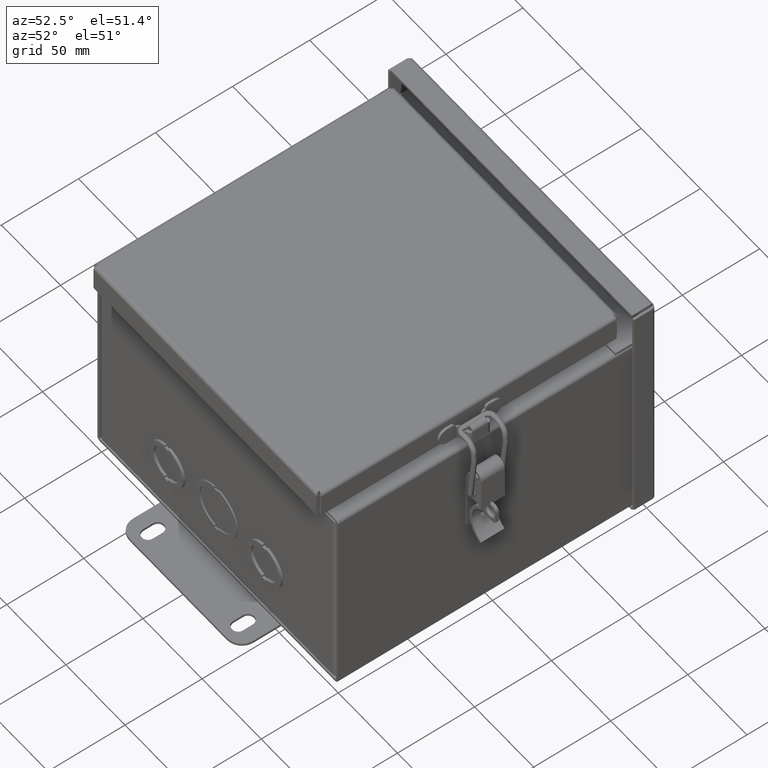
[diagram: clean part render]
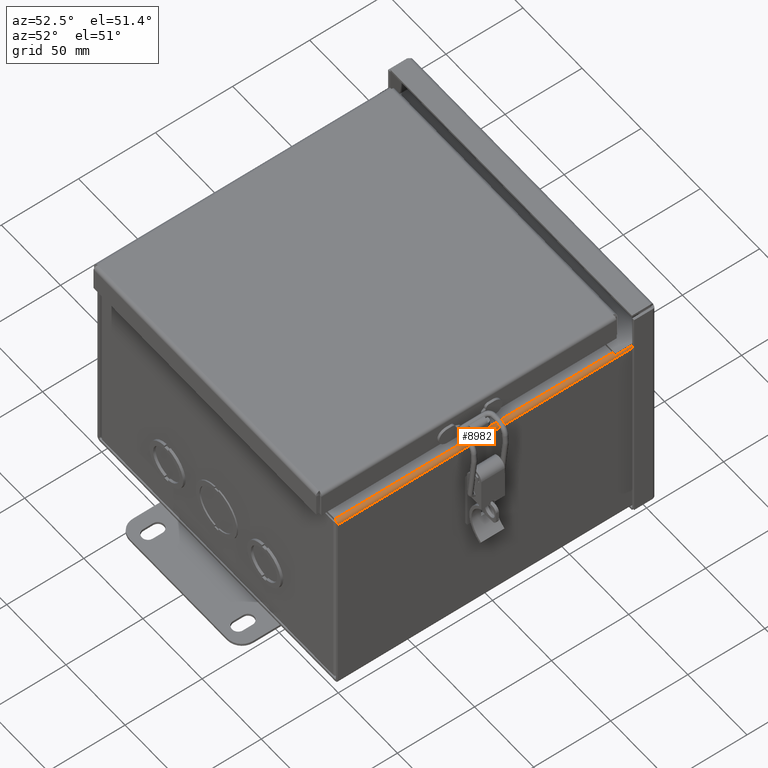
[diagram: same view with one face highlighted and labeled with its STEP entity id]
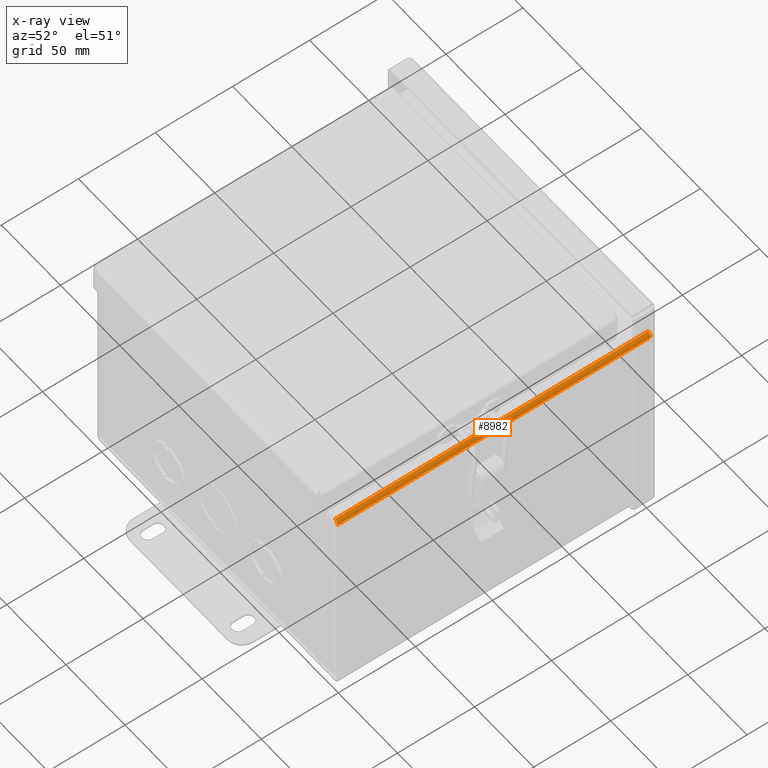
[diagram: x-ray of the same camera — body ghosted, the highlighted face saturated]
A machine part, auxiliary view. The second image highlights one B-rep face of the part: STEP entity #8982.
The next image is the same camera in x-ray: the body ghosted, the highlighted face saturated — about 0% of this face is hidden behind the body in this view.
In plain terms, the highlighted cylindrical surface (edge-blend (fillet) strip) has radius 2.3812 mm, axis along (0, -1, -0).
Its self-contained STEP definition (entity closure, byte-faithful):
#698=FACE_OUTER_BOUND($,#1207,.T.);
#1207=EDGE_LOOP($,(#6020,#6021,#6022,#6023));
#1808=CIRCLE($,#9553,0.0937499999999987);
#1809=CIRCLE($,#9554,0.09375);
#2090=LINE($,#12936,#3016);
#2113=LINE($,#12984,#3039);
#3016=VECTOR($,#10415,8.);
#3039=VECTOR($,#10456,8.);
#3930=VERTEX_POINT($,#12933);
#3931=VERTEX_POINT($,#12935);
#3946=VERTEX_POINT($,#12981);
#3947=VERTEX_POINT($,#12983);
#4719=EDGE_CURVE($,#3930,#3931,#2090,.T.);
#4742=EDGE_CURVE($,#3946,#3930,#1808,.T.);
#4743=EDGE_CURVE($,#3947,#3946,#2113,.T.);
#4744=EDGE_CURVE($,#3931,#3947,#1809,.T.);
#6020=ORIENTED_EDGE($,*,*,#4719,.F.);
#6021=ORIENTED_EDGE($,*,*,#4742,.F.);
#6022=ORIENTED_EDGE($,*,*,#4743,.F.);
#6023=ORIENTED_EDGE($,*,*,#4744,.F.);
#8390=CYLINDRICAL_SURFACE($,#9552,0.0937499999999991);
#8982=ADVANCED_FACE($,(#698),#8390,.T.);
#9552=AXIS2_PLACEMENT_3D($,#12980,#10452,#10453);
#9553=AXIS2_PLACEMENT_3D($,#12982,#10454,#10455);
#9554=AXIS2_PLACEMENT_3D($,#12985,#10457,#10458);
#10415=DIRECTION($,(-2.91864101887205E-019,1.,2.91864101887215E-019));
#10452=DIRECTION('center_axis',(2.91864101887208E-019,-1.,-1.57017219143176E-033));
#10453=DIRECTION('ref_axis',(1.,2.91864101887208E-019,-5.37980581126267E-015));
#10454=DIRECTION('center_axis',(2.91864101887208E-019,-1.,-1.57017219143176E-033));
#10455=DIRECTION('ref_axis',(1.,0.,7.45976625469932E-015));
#10456=DIRECTION($,(-2.91864101887208E-019,-1.,0.));
#10457=DIRECTION('center_axis',(-2.91864101887208E-019,1.,1.57017219143176E-033));
#10458=DIRECTION('ref_axis',(7.45976625469921E-015,0.,1.));
#12933=CARTESIAN_POINT('',(3.90625000000003,-4.,5.25));
#12935=CARTESIAN_POINT('',(3.90625000000003,4.,5.25));
#12936=CARTESIAN_POINT($,(3.90625000000003,5.4363337277766E-018,5.25));
#12980=CARTESIAN_POINT('Origin',(3.90625000000002,-1.71470159858733E-020,
5.15625));
#12981=CARTESIAN_POINT('',(4.00000000000003,-4.,5.15625));
#12982=CARTESIAN_POINT('Origin',(3.90625000000002,-4.,5.15625));
#12983=CARTESIAN_POINT('',(4.00000000000003,4.,5.15625));
#12984=CARTESIAN_POINT($,(4.00000000000002,2.,5.15625));
#12985=CARTESIAN_POINT('Origin',(3.90625000000002,4.,5.15625));